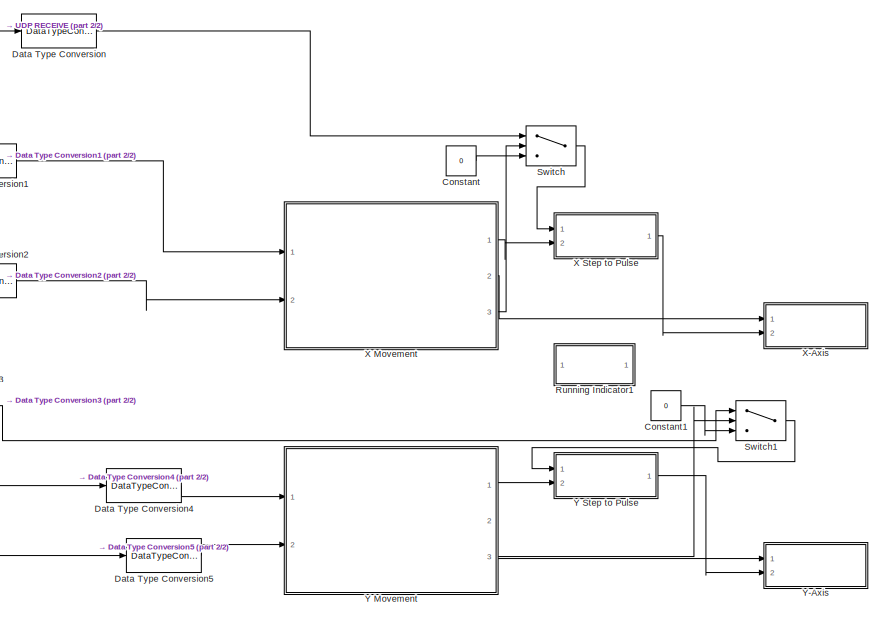
[diagram: root canvas - part 1/2, right side, full height]
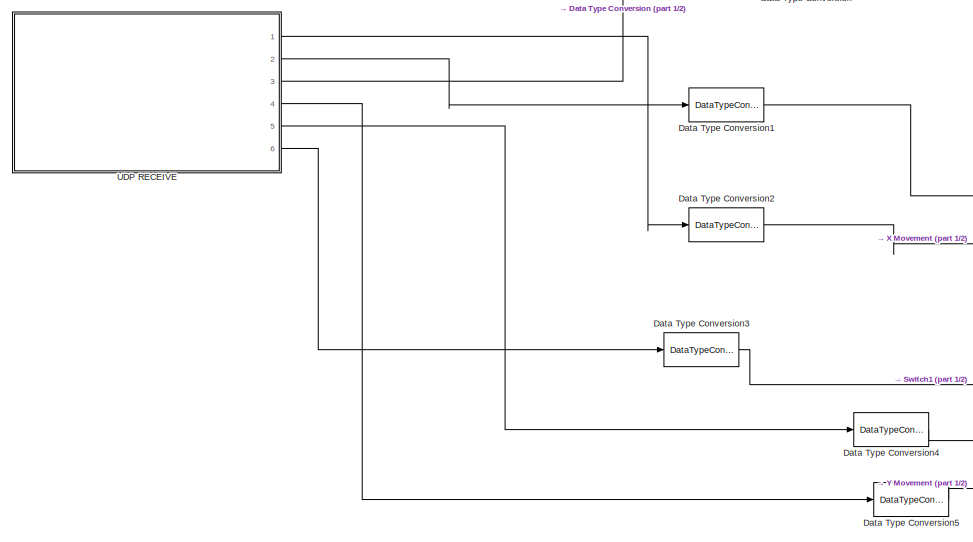
[diagram: root canvas - part 2/2, left side, full height]
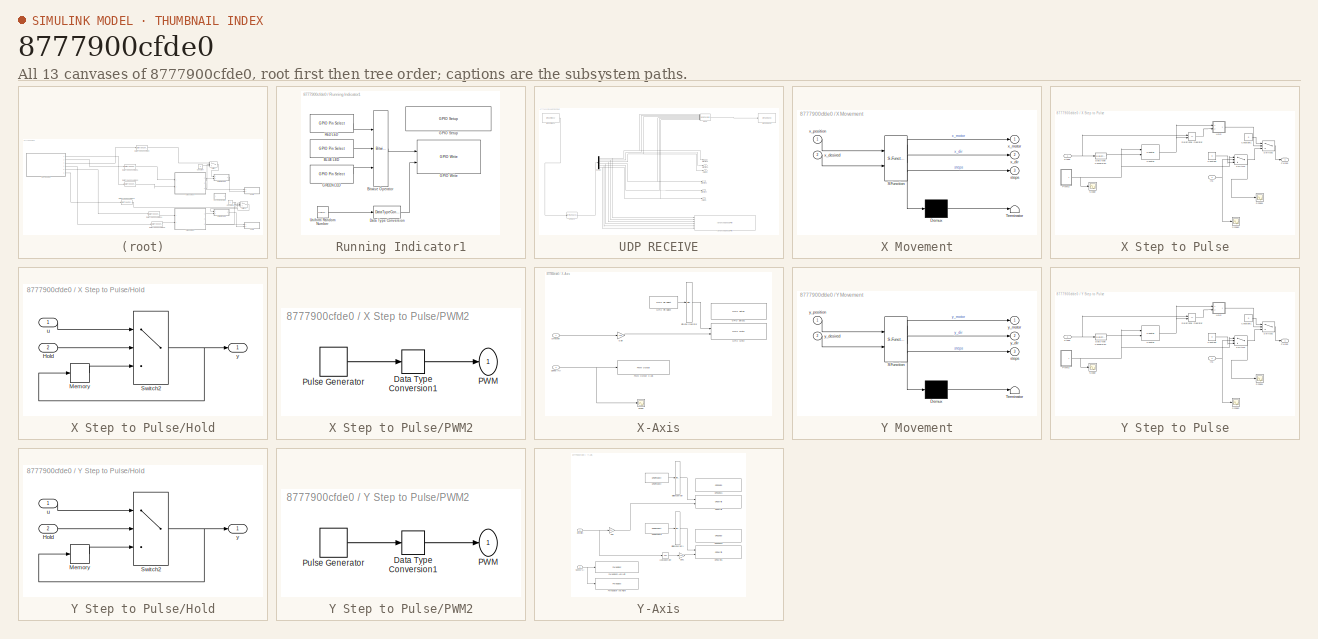
[diagram: thumbnail index - all 13 canvases of the model, root first then tree order]
MODEL slx_8777900cfde0
KIND model
CONFIG AbsTol = auto
CONFIG EnableMultiTasking = off
CONFIG FixedStep = 0.2
CONFIG MaxStep = auto
CONFIG MinStep = auto
CONFIG RelTol = 1e-3
CONFIG SampleTimeConstraint = Unconstrained
CONFIG Solver = FixedStepDiscrete
CONFIG SolverName = FixedStepDiscrete
CONFIG StartTime = 0.0
CONFIG StopTime = 10.0
BLOCK [Constant] Constant
  Value = 0
BLOCK [Constant] Constant1
  Value = 0
BLOCK [DataTypeConversion] Data Type Conversion
  RndMeth = Floor
  SaturateOnIntegerOverflow = off
BLOCK [DataTypeConversion] Data Type Conversion1
  RndMeth = Floor
  SaturateOnIntegerOverflow = off
BLOCK [DataTypeConversion] Data Type Conversion2
  RndMeth = Floor
  SaturateOnIntegerOverflow = off
BLOCK [DataTypeConversion] Data Type Conversion3
  RndMeth = Floor
  SaturateOnIntegerOverflow = off
BLOCK [DataTypeConversion] Data Type Conversion4
  RndMeth = Floor
  SaturateOnIntegerOverflow = off
BLOCK [DataTypeConversion] Data Type Conversion5
  RndMeth = Floor
  SaturateOnIntegerOverflow = off
BLOCK [SubSystem] Running Indicator1
  Ports = []
  RequestExecContextInheritance = off
  Variant = off
BLOCK [Reference] Running Indicator1/BLUE LED  REF=stellaris_lp_lib/GPIO/GPIO Pin Select
  Ports = [0, 1]
  SourceBlock = stellaris_lp_lib/GPIO/GPIO Pin Select
  SourceProductName = Run on Stellaris LaunchPad
  SourceType = GPIO pin selector
BLOCK [Reference] Running Indicator1/Bitwise Operator  REF=simulink/Logic and Bit
Operations/Bitwise
Operator
  Ports = [3, 1]
  SourceBlock = simulink/Logic and Bit\nOperations/Bitwise\nOperator
  SourceProductBaseCode = SL
  SourceProductName = Simulink
  SourceType = Bitwise Operator
BLOCK [DataTypeConversion] Running Indicator1/Data Type Conversion
  RndMeth = Floor
  SaturateOnIntegerOverflow = off
BLOCK [Reference] Running Indicator1/GPIO Setup  REF=stellaris_lp_lib/GPIO/GPIO Setup
  Ports = []
  SourceBlock = stellaris_lp_lib/GPIO/GPIO Setup
  SourceProductName = Run on Stellaris LaunchPad
  SourceType = GPIO Setup
BLOCK [Reference] Running Indicator1/GPIO Write  REF=stellaris_lp_lib/GPIO/GPIO Write
  Ports = [2]
  SourceBlock = stellaris_lp_lib/GPIO/GPIO Write
  SourceProductName = Run on Stellaris LaunchPad
  SourceType = GPIO Write
BLOCK [Reference] Running Indicator1/GREEN LED  REF=stellaris_lp_lib/GPIO/GPIO Pin Select
  Ports = [0, 1]
  SourceBlock = stellaris_lp_lib/GPIO/GPIO Pin Select
  SourceProductName = Run on Stellaris LaunchPad
  SourceType = GPIO pin selector
BLOCK [Reference] Running Indicator1/RED LED  REF=stellaris_lp_lib/GPIO/GPIO Pin Select
  Ports = [0, 1]
  SourceBlock = stellaris_lp_lib/GPIO/GPIO Pin Select
  SourceProductName = Run on Stellaris LaunchPad
  SourceType = GPIO pin selector
BLOCK [UniformRandomNumber] Running Indicator1/Uniform Random Number
  Maximum = 2
  Minimum = 0
  SampleTime = 0.2
BLOCK [Switch] Switch
  Criteria = u2 ~= 0
  InputSameDT = off
  SaturateOnIntegerOverflow = off
BLOCK [Switch] Switch1
  Criteria = u2 ~= 0
  InputSameDT = off
  SaturateOnIntegerOverflow = off
BLOCK [SubSystem] UDP RECEIVE
  Ports = [0, 6]
  RequestExecContextInheritance = off
  Variant = off
BLOCK [Reference] UDP RECEIVE/Advanced Debug Print  REF=stellaris_lp_lib/Debug/Advanced Debug Print
  Ports = [6]
  SourceBlock = stellaris_lp_lib/Debug/Advanced Debug Print
  SourceProductName = Run on Stellaris LaunchPad
  SourceType = Advanced Debug Print
BLOCK [Demux] UDP RECEIVE/Demux
  DisplayOption = bar
  Outputs = 6
  Ports = [1, 6]
BLOCK [Outport] UDP RECEIVE/Direction-1 
  IconDisplay = Port number
BLOCK [Outport] UDP RECEIVE/Direction-2 
  IconDisplay = Port number
  Port = 2
BLOCK [Outport] UDP RECEIVE/Direction-3 
  IconDisplay = Port number
  Port = 4
BLOCK [Outport] UDP RECEIVE/Direction-4 
  IconDisplay = Port number
  Port = 5
BLOCK [Reference] UDP RECEIVE/MPComRecv  REF=stellaris_lp_lib/Communication/MPComRecv
  Ports = [0, 1]
  SourceBlock = stellaris_lp_lib/Communication/MPComRecv
  SourceProductName = Run on Stellaris LaunchPad
  SourceType = Multi-port Serial Receive
BLOCK [Reference] UDP RECEIVE/MPComSend  REF=stellaris_lp_lib/Communication/MPComSend
  Ports = [1, 1]
  SourceBlock = stellaris_lp_lib/Communication/MPComSend
  SourceProductName = Run on Stellaris LaunchPad
  SourceType = Multi-port Serial Send
BLOCK [Reference] UDP RECEIVE/Pack  REF=xpcutilitieslib/Byte Packing 
  Ports = [6, 1]
  SourceBlock = xpcutilitieslib/Byte Packing
  SourceProductBaseCode = XP
  SourceProductName = Simulink Real-Time
  SourceType = xpcbytepacking
BLOCK [Reference] UDP RECEIVE/Unpack  REF=xpcutilitieslib/Byte Unpacking 
  Ports = [1, 1]
  SourceBlock = xpcutilitieslib/Byte Unpacking
  SourceProductBaseCode = XP
  SourceProductName = Simulink Real-Time
  SourceType = xpcbytepacking
BLOCK [Outport] UDP RECEIVE/X-Steps
  IconDisplay = Port number
  Port = 3
BLOCK [Outport] UDP RECEIVE/Y-Steps
  IconDisplay = Port number
  Port = 6
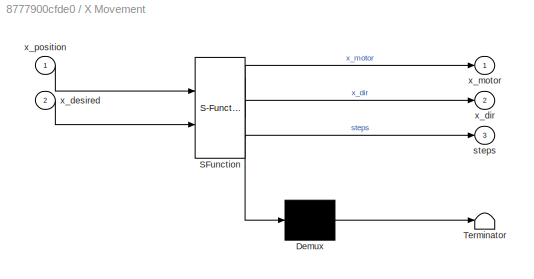
BLOCK [SubSystem] X Movement
  ErrorFcn = Stateflow.Translate.translate
  PermitHierarchicalResolution = ExplicitOnly
  Ports = [2, 3]
  RequestExecContextInheritance = off
  SFBlockType = Chart
  TreatAsAtomicUnit = on
  Variant = off
BLOCK [Demux] X Movement/ Demux 
  Outputs = 1
  Ports = [1, 1]
BLOCK [S-Function] X Movement/ SFunction 
  EnableBusSupport = on
  FunctionName = sf_sfun
  PortCounts = [2 4]
  Ports = [2, 4]
  SFcnIsStateOwnerBlock = off
  SFunctionDeploymentMode = off
  Tag = Stateflow S-Function FullDuplex_UDP 2
BLOCK [Terminator] X Movement/ Terminator 
BLOCK [Outport] X Movement/steps
  IconDisplay = Port number
  Port = 3
BLOCK [Inport] X Movement/x_desired
  IconDisplay = Port number
  Port = 2
BLOCK [Outport] X Movement/x_dir
  IconDisplay = Port number
  Port = 2
BLOCK [Outport] X Movement/x_motor
  IconDisplay = Port number
BLOCK [Inport] X Movement/x_position
  IconDisplay = Port number
BLOCK [SubSystem] X Step to Pulse
  Ports = [2, 1]
  RequestExecContextInheritance = off
  TreatAsAtomicUnit = on
  Variant = off
BLOCK [Constant] X Step to Pulse/Constant
  OutDataTypeStr = single
  Value = 0
BLOCK [Constant] X Step to Pulse/Constant1
  OutDataTypeStr = single
  Value = 0
BLOCK [Reference] X Step to Pulse/Counter  REF=dspswit3/Counter
  Ports = [2, 1]
  SourceBlock = dspswit3/Counter
  SourceProductBaseCode = DS
  SourceProductName = DSP System Toolbox
  SourceType = Counter
BLOCK [DataTypeConversion] X Step to Pulse/Data Type Conversion
  OutDataTypeStr = uint8
  RndMeth = Floor
  SaturateOnIntegerOverflow = off
BLOCK [SubSystem] X Step to Pulse/Hold
  Ports = [2, 1]
  RequestExecContextInheritance = off
  TreatAsAtomicUnit = on
  Variant = off
BLOCK [Inport] X Step to Pulse/Hold/Hold
  IconDisplay = Port number
  OutDataTypeStr = boolean
  Port = 2
BLOCK [Memory] X Step to Pulse/Hold/Memory
BLOCK [Switch] X Step to Pulse/Hold/Switch2
  Criteria = u2 > Threshold
  InputSameDT = off
  OutDataTypeStr = single
  SaturateOnIntegerOverflow = off
BLOCK [Inport] X Step to Pulse/Hold/u
  IconDisplay = Port number
  OutDataTypeStr = single
BLOCK [Outport] X Step to Pulse/Hold/y
  IconDisplay = Port number
  OutDataTypeStr = single
BLOCK [Inport] X Step to Pulse/In1
  IconDisplay = Port number
  Port = 2
BLOCK [SubSystem] X Step to Pulse/PWM2
  Ports = [0, 1]
  RequestExecContextInheritance = off
  Variant = off
BLOCK [DataTypeConversion] X Step to Pulse/PWM2/Data Type Conversion1
  OutDataTypeStr = single
  RndMeth = Floor
  SaturateOnIntegerOverflow = off
BLOCK [Outport] X Step to Pulse/PWM2/PWM
  IconDisplay = Port number
BLOCK [DiscretePulseGenerator] X Step to Pulse/PWM2/Pulse Generator
  Amplitude = 50
  Period = 0.01
  Ports = [0, 1]
  PulseType = Time based
  PulseWidth = 98
BLOCK [Outport] X Step to Pulse/Pulses
  IconDisplay = Port number
BLOCK [RelationalOperator] X Step to Pulse/Relational Operator
  InputSameDT = off
  Operator = ==
  OutDataTypeStr = boolean
  Ports = [2, 1]
  RndMeth = Simplest
BLOCK [Scope] X Step to Pulse/Scope
  NumInputPorts = 1
  Ports = [1]
  ScopeSpecificationString = Simulink.scopes.TimeScopeBlockCfg('CurrentConfiguration', extmgr.ConfigurationSet(extmgr.Configuration('Core','General UI',true),extmgr.Configuration('Core','Source UI',true),extmgr.Configuration('Sources','WiredSimulink',true),extmgr.Configuration('Visuals','Time Domain',true,'SerializedDisplays',{struct('MinYLimReal','-6.25','MaxYLimReal','56.25','YLabelReal','','MinYLimMag','0.00000','MaxYLimMa...<+1342ch>
BLOCK [Scope] X Step to Pulse/Scope1
  NumInputPorts = 1
  Ports = [1]
  ScopeSpecificationString = Simulink.scopes.TimeScopeBlockCfg('CurrentConfiguration', extmgr.ConfigurationSet(extmgr.Configuration('Core','General UI',true),extmgr.Configuration('Core','Source UI',true),extmgr.Configuration('Sources','WiredSimulink',true,'DataLoggingVariableName','ScopeData1'),extmgr.Configuration('Visuals','Time Domain',true,'SerializedDisplays',{struct('MinYLimReal','-6.25','MaxYLimReal','56.25','YLabelRea...<+1381ch>
BLOCK [Scope] X Step to Pulse/Scope2
  NumInputPorts = 1
  Ports = [1]
  ScopeSpecificationString = Simulink.scopes.TimeScopeBlockCfg('CurrentConfiguration', extmgr.ConfigurationSet(extmgr.Configuration('Core','General UI',true),extmgr.Configuration('Core','Source UI',true),extmgr.Configuration('Sources','WiredSimulink',true,'DataLoggingVariableName','ScopeData2'),extmgr.Configuration('Visuals','Time Domain',true,'SerializedDisplays',{struct('MinYLimReal','-0.125','MaxYLimReal','1.125','YLabelRe...<+1379ch>
BLOCK [Inport] X Step to Pulse/Steps
  IconDisplay = Port number
BLOCK [Switch] X Step to Pulse/Switch1
  Criteria = u2 ~= 0
  InputSameDT = off
  SaturateOnIntegerOverflow = off
BLOCK [Switch] X Step to Pulse/Switch2
  Criteria = u2 > Threshold
  InputSameDT = off
  SaturateOnIntegerOverflow = off
BLOCK [SubSystem] X-Axis
  Ports = [2]
  RequestExecContextInheritance = off
  Variant = off
BLOCK [Reference] X-Axis/Bitwise Operator  REF=simulink/Logic and Bit
Operations/Bitwise
Operator
  Ports = [1, 1]
  SourceBlock = simulink/Logic and Bit\nOperations/Bitwise\nOperator
  SourceProductBaseCode = SL
  SourceProductName = Simulink
  SourceType = Bitwise Operator
BLOCK [Inport] X-Axis/Direction
  IconDisplay = Port number
  OutDataTypeStr = uint8
BLOCK [Reference] X-Axis/GPIO Pin Select  REF=stellaris_lp_lib/GPIO/GPIO Pin Select
  Ports = [0, 1]
  SourceBlock = stellaris_lp_lib/GPIO/GPIO Pin Select
  SourceProductName = Run on Stellaris LaunchPad
  SourceType = GPIO pin selector
BLOCK [Reference] X-Axis/GPIO Setup1  REF=stellaris_lp_lib/GPIO/GPIO Setup
  Ports = []
  SourceBlock = stellaris_lp_lib/GPIO/GPIO Setup
  SourceProductName = Run on Stellaris LaunchPad
  SourceType = GPIO Setup
BLOCK [Reference] X-Axis/GPIO Write  REF=stellaris_lp_lib/GPIO/GPIO Write
  Ports = [2]
  SourceBlock = stellaris_lp_lib/GPIO/GPIO Write
  SourceProductName = Run on Stellaris LaunchPad
  SourceType = GPIO Write
BLOCK [Gain] X-Axis/Gain
  Gain = 128
  OutDataTypeStr = uint8
  ParamDataTypeStr = uint8
  SaturateOnIntegerOverflow = off
BLOCK [Reference] X-Axis/PWM Output X-Axis  REF=stellaris_lp_lib/PWM/PWM Output
  Ports = [1]
  SourceBlock = stellaris_lp_lib/PWM/PWM Output
  SourceProductName = Run on Stellaris LaunchPad
  SourceType = PWM Output
BLOCK [Scope] X-Axis/Scope
  NumInputPorts = 1
  Ports = [1]
  ScopeSpecificationString = Simulink.scopes.TimeScopeBlockCfg('CurrentConfiguration', extmgr.ConfigurationSet(extmgr.Configuration('Core','General UI',true),extmgr.Configuration('Core','Source UI',true),extmgr.Configuration('Sources','WiredSimulink',true,'DataLoggingVariableName','ScopeData1'),extmgr.Configuration('Visuals','Time Domain',true,'SerializedDisplays',{struct('MinYLimReal','-6.25','MaxYLimReal','56.25','YLabelRea...<+1354ch>
BLOCK [Inport] X-Axis/Speed (%)
  IconDisplay = Port number
  OutDataTypeStr = single
  Port = 2
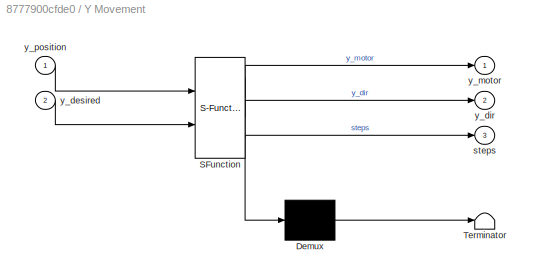
BLOCK [SubSystem] Y Movement
  ErrorFcn = Stateflow.Translate.translate
  PermitHierarchicalResolution = ExplicitOnly
  Ports = [2, 3]
  RequestExecContextInheritance = off
  SFBlockType = Chart
  TreatAsAtomicUnit = on
  Variant = off
BLOCK [Demux] Y Movement/ Demux 
  Outputs = 1
  Ports = [1, 1]
BLOCK [S-Function] Y Movement/ SFunction 
  EnableBusSupport = on
  FunctionName = sf_sfun
  PortCounts = [2 4]
  Ports = [2, 4]
  SFcnIsStateOwnerBlock = off
  SFunctionDeploymentMode = off
  Tag = Stateflow S-Function FullDuplex_UDP 3
BLOCK [Terminator] Y Movement/ Terminator 
BLOCK [Outport] Y Movement/steps
  IconDisplay = Port number
  Port = 3
BLOCK [Inport] Y Movement/y_desired
  IconDisplay = Port number
  Port = 2
BLOCK [Outport] Y Movement/y_dir
  IconDisplay = Port number
  Port = 2
BLOCK [Outport] Y Movement/y_motor
  IconDisplay = Port number
BLOCK [Inport] Y Movement/y_position
  IconDisplay = Port number
BLOCK [SubSystem] Y Step to Pulse
  Ports = [2, 1]
  RequestExecContextInheritance = off
  TreatAsAtomicUnit = on
  Variant = off
BLOCK [Constant] Y Step to Pulse/Constant
  OutDataTypeStr = single
  Value = 0
BLOCK [Constant] Y Step to Pulse/Constant1
  OutDataTypeStr = single
  Value = 0
BLOCK [Reference] Y Step to Pulse/Counter  REF=dspswit3/Counter
  Ports = [2, 1]
  SourceBlock = dspswit3/Counter
  SourceProductBaseCode = DS
  SourceProductName = DSP System Toolbox
  SourceType = Counter
BLOCK [DataTypeConversion] Y Step to Pulse/Data Type Conversion
  OutDataTypeStr = uint8
  RndMeth = Floor
  SaturateOnIntegerOverflow = off
BLOCK [SubSystem] Y Step to Pulse/Hold
  Ports = [2, 1]
  RequestExecContextInheritance = off
  TreatAsAtomicUnit = on
  Variant = off
BLOCK [Inport] Y Step to Pulse/Hold/Hold
  IconDisplay = Port number
  OutDataTypeStr = boolean
  Port = 2
BLOCK [Memory] Y Step to Pulse/Hold/Memory
BLOCK [Switch] Y Step to Pulse/Hold/Switch2
  Criteria = u2 > Threshold
  InputSameDT = off
  OutDataTypeStr = single
  SaturateOnIntegerOverflow = off
BLOCK [Inport] Y Step to Pulse/Hold/u
  IconDisplay = Port number
  OutDataTypeStr = single
BLOCK [Outport] Y Step to Pulse/Hold/y
  IconDisplay = Port number
  OutDataTypeStr = single
BLOCK [Inport] Y Step to Pulse/In1
  IconDisplay = Port number
  Port = 2
BLOCK [SubSystem] Y Step to Pulse/PWM2
  Ports = [0, 1]
  RequestExecContextInheritance = off
  Variant = off
BLOCK [DataTypeConversion] Y Step to Pulse/PWM2/Data Type Conversion1
  OutDataTypeStr = single
  RndMeth = Floor
  SaturateOnIntegerOverflow = off
BLOCK [Outport] Y Step to Pulse/PWM2/PWM
  IconDisplay = Port number
BLOCK [DiscretePulseGenerator] Y Step to Pulse/PWM2/Pulse Generator
  Amplitude = 50
  Period = 0.01
  Ports = [0, 1]
  PulseType = Time based
  PulseWidth = 98
BLOCK [Outport] Y Step to Pulse/Pulses
  IconDisplay = Port number
BLOCK [RelationalOperator] Y Step to Pulse/Relational Operator
  InputSameDT = off
  Operator = ==
  OutDataTypeStr = boolean
  Ports = [2, 1]
  RndMeth = Simplest
BLOCK [Scope] Y Step to Pulse/Scope
  NumInputPorts = 1
  Ports = [1]
  ScopeSpecificationString = Simulink.scopes.TimeScopeBlockCfg('CurrentConfiguration', extmgr.ConfigurationSet(extmgr.Configuration('Core','General UI',true),extmgr.Configuration('Core','Source UI',true),extmgr.Configuration('Sources','WiredSimulink',true),extmgr.Configuration('Visuals','Time Domain',true,'SerializedDisplays',{struct('MinYLimReal','-6.25','MaxYLimReal','56.25','YLabelReal','','MinYLimMag','0.00000','MaxYLimMa...<+1342ch>
BLOCK [Scope] Y Step to Pulse/Scope1
  NumInputPorts = 1
  Ports = [1]
  ScopeSpecificationString = Simulink.scopes.TimeScopeBlockCfg('CurrentConfiguration', extmgr.ConfigurationSet(extmgr.Configuration('Core','General UI',true),extmgr.Configuration('Core','Source UI',true),extmgr.Configuration('Sources','WiredSimulink',true,'DataLoggingVariableName','ScopeData1'),extmgr.Configuration('Visuals','Time Domain',true,'SerializedDisplays',{struct('MinYLimReal','-6.25','MaxYLimReal','56.25','YLabelRea...<+1381ch>
BLOCK [Scope] Y Step to Pulse/Scope2
  NumInputPorts = 1
  Ports = [1]
  ScopeSpecificationString = Simulink.scopes.TimeScopeBlockCfg('CurrentConfiguration', extmgr.ConfigurationSet(extmgr.Configuration('Core','General UI',true),extmgr.Configuration('Core','Source UI',true),extmgr.Configuration('Sources','WiredSimulink',true,'DataLoggingVariableName','ScopeData2'),extmgr.Configuration('Visuals','Time Domain',true,'SerializedDisplays',{struct('MinYLimReal','-0.125','MaxYLimReal','1.125','YLabelRe...<+1379ch>
BLOCK [Inport] Y Step to Pulse/Steps
  IconDisplay = Port number
BLOCK [Switch] Y Step to Pulse/Switch1
  Criteria = u2 ~= 0
  InputSameDT = off
  SaturateOnIntegerOverflow = off
BLOCK [Switch] Y Step to Pulse/Switch2
  Criteria = u2 > Threshold
  InputSameDT = off
  SaturateOnIntegerOverflow = off
BLOCK [SubSystem] Y-Axis
  Ports = [2]
  RequestExecContextInheritance = off
  Variant = off
BLOCK [Reference] Y-Axis/Bitwise Operator  REF=simulink/Logic and Bit
Operations/Bitwise
Operator
  Ports = [1, 1]
  SourceBlock = simulink/Logic and Bit\nOperations/Bitwise\nOperator
  SourceProductBaseCode = SL
  SourceProductName = Simulink
  SourceType = Bitwise Operator
BLOCK [Reference] Y-Axis/Bitwise Operator1  REF=simulink/Logic and Bit
Operations/Bitwise
Operator
  Ports = [1, 1]
  SourceBlock = simulink/Logic and Bit\nOperations/Bitwise\nOperator
  SourceProductBaseCode = SL
  SourceProductName = Simulink
  SourceType = Bitwise Operator
BLOCK [Inport] Y-Axis/Direction
  IconDisplay = Port number
  OutDataTypeStr = uint8
BLOCK [Reference] Y-Axis/GPIO Pin Select  REF=stellaris_lp_lib/GPIO/GPIO Pin Select
  Ports = [0, 1]
  SourceBlock = stellaris_lp_lib/GPIO/GPIO Pin Select
  SourceProductName = Run on Stellaris LaunchPad
  SourceType = GPIO pin selector
BLOCK [Reference] Y-Axis/GPIO Pin Select1  REF=stellaris_lp_lib/GPIO/GPIO Pin Select
  Ports = [0, 1]
  SourceBlock = stellaris_lp_lib/GPIO/GPIO Pin Select
  SourceProductName = Run on Stellaris LaunchPad
  SourceType = GPIO pin selector
BLOCK [Reference] Y-Axis/GPIO Setup1  REF=stellaris_lp_lib/GPIO/GPIO Setup
  Ports = []
  SourceBlock = stellaris_lp_lib/GPIO/GPIO Setup
  SourceProductName = Run on Stellaris LaunchPad
  SourceType = GPIO Setup
BLOCK [Reference] Y-Axis/GPIO Setup2  REF=stellaris_lp_lib/GPIO/GPIO Setup
  Ports = []
  SourceBlock = stellaris_lp_lib/GPIO/GPIO Setup
  SourceProductName = Run on Stellaris LaunchPad
  SourceType = GPIO Setup
BLOCK [Reference] Y-Axis/GPIO Write  REF=stellaris_lp_lib/GPIO/GPIO Write
  Ports = [2]
  SourceBlock = stellaris_lp_lib/GPIO/GPIO Write
  SourceProductName = Run on Stellaris LaunchPad
  SourceType = GPIO Write
BLOCK [Reference] Y-Axis/GPIO Write1  REF=stellaris_lp_lib/GPIO/GPIO Write
  Ports = [2]
  SourceBlock = stellaris_lp_lib/GPIO/GPIO Write
  SourceProductName = Run on Stellaris LaunchPad
  SourceType = GPIO Write
BLOCK [Gain] Y-Axis/Gain
  Gain = 64
  OutDataTypeStr = uint8
  ParamDataTypeStr = uint8
  SaturateOnIntegerOverflow = off
BLOCK [Gain] Y-Axis/Gain1
  Gain = 128
  OutDataTypeStr = uint8
  ParamDataTypeStr = Inherit: Inherit via internal rule
  SaturateOnIntegerOverflow = off
BLOCK [Logic] Y-Axis/Logical Operator
  AllPortsSameDT = off
  Operator = NOT
  OutDataTypeStr = boolean
  Ports = [1, 1]
BLOCK [Reference] Y-Axis/PWM Output Y-Axis (Left)  REF=stellaris_lp_lib/PWM/PWM Output
  Ports = [1]
  SourceBlock = stellaris_lp_lib/PWM/PWM Output
  SourceProductName = Run on Stellaris LaunchPad
  SourceType = PWM Output
BLOCK [Reference] Y-Axis/PWM Output Y-Axis (Right)  REF=stellaris_lp_lib/PWM/PWM Output
  Ports = [1]
  SourceBlock = stellaris_lp_lib/PWM/PWM Output
  SourceProductName = Run on Stellaris LaunchPad
  SourceType = PWM Output
BLOCK [Inport] Y-Axis/Speed (%)
  IconDisplay = Port number
  OutDataTypeStr = single
  Port = 2
LINE Constant1:1 -> Switch1:3
LINE Constant:1 -> Switch:3
LINE Data Type Conversion1:1 -> X Movement:1
LINE Data Type Conversion2:1 -> X Movement:2
LINE Data Type Conversion3:1 -> Switch1:1
LINE Data Type Conversion4:1 -> Y Movement:1
LINE Data Type Conversion5:1 -> Y Movement:2
LINE Data Type Conversion:1 -> Switch:1
LINE Running Indicator1/BLUE LED:1 -> Running Indicator1/Bitwise Operator:2
LINE Running Indicator1/Bitwise Operator:1 -> Running Indicator1/GPIO Write:1
LINE Running Indicator1/Data Type Conversion:1 -> Running Indicator1/GPIO Write:2
LINE Running Indicator1/GREEN LED:1 -> Running Indicator1/Bitwise Operator:3
LINE Running Indicator1/RED LED:1 -> Running Indicator1/Bitwise Operator:1
LINE Running Indicator1/Uniform Random Number:1 -> Running Indicator1/Data Type Conversion:1
LINE Switch1:1 -> Y Step to Pulse:1
LINE Switch:1 -> X Step to Pulse:1
NET UDP RECEIVE/Demux:1 -> UDP RECEIVE/Advanced Debug Print:1, UDP RECEIVE/Direction-1 :1, UDP RECEIVE/Pack:1
NET UDP RECEIVE/Demux:2 -> UDP RECEIVE/Advanced Debug Print:2, UDP RECEIVE/Direction-2 :1, UDP RECEIVE/Pack:2
NET UDP RECEIVE/Demux:3 -> UDP RECEIVE/Advanced Debug Print:3, UDP RECEIVE/Pack:3, UDP RECEIVE/X-Steps:1
NET UDP RECEIVE/Demux:4 -> UDP RECEIVE/Advanced Debug Print:4, UDP RECEIVE/Direction-3 :1, UDP RECEIVE/Pack:4
NET UDP RECEIVE/Demux:5 -> UDP RECEIVE/Advanced Debug Print:5, UDP RECEIVE/Direction-4 :1, UDP RECEIVE/Pack:5
NET UDP RECEIVE/Demux:6 -> UDP RECEIVE/Advanced Debug Print:6, UDP RECEIVE/Pack:6, UDP RECEIVE/Y-Steps:1
LINE UDP RECEIVE/MPComRecv:1 -> UDP RECEIVE/Unpack:1
LINE UDP RECEIVE/Pack:1 -> UDP RECEIVE/MPComSend:1
LINE UDP RECEIVE/Unpack:1 -> UDP RECEIVE/Demux:1
LINE UDP RECEIVE:1 -> Data Type Conversion2:1
LINE UDP RECEIVE:2 -> Data Type Conversion1:1
LINE UDP RECEIVE:3 -> Data Type Conversion:1
LINE UDP RECEIVE:4 -> Data Type Conversion5:1
LINE UDP RECEIVE:5 -> Data Type Conversion4:1
LINE UDP RECEIVE:6 -> Data Type Conversion3:1
LINE X Movement:1 -> X Step to Pulse:2
LINE X Movement:2 -> X-Axis:1
LINE X Movement:3 -> Switch:2
LINE X Step to Pulse/Constant1:1 -> X Step to Pulse/Switch2:1
LINE X Step to Pulse/Constant:1 -> X Step to Pulse/Switch1:3
NET X Step to Pulse/Counter:1 -> X Step to Pulse/Hold:1, X Step to Pulse/Relational Operator:2
LINE X Step to Pulse/Data Type Conversion:1 -> X Step to Pulse/Counter:2
LINE X Step to Pulse/Hold/Hold:1 -> X Step to Pulse/Hold/Switch2:2
LINE X Step to Pulse/Hold/Memory:1 -> X Step to Pulse/Hold/Switch2:3
NET X Step to Pulse/Hold/Switch2:1 -> X Step to Pulse/Hold/Memory:1, X Step to Pulse/Hold/y:1
LINE X Step to Pulse/Hold/u:1 -> X Step to Pulse/Hold/Switch2:1
LINE X Step to Pulse/Hold:1 -> X Step to Pulse/Switch2:2
NET X Step to Pulse/In1:1 -> X Step to Pulse/Scope2:1, X Step to Pulse/Switch1:2
LINE X Step to Pulse/PWM2/Data Type Conversion1:1 -> X Step to Pulse/PWM2/PWM:1
LINE X Step to Pulse/PWM2/Pulse Generator:1 -> X Step to Pulse/PWM2/Data Type Conversion1:1
NET X Step to Pulse/PWM2:1 -> X Step to Pulse/Counter:1, X Step to Pulse/Scope:1, X Step to Pulse/Switch1:1
LINE X Step to Pulse/Relational Operator:1 -> X Step to Pulse/Hold:2
NET X Step to Pulse/Steps:1 -> X Step to Pulse/Data Type Conversion:1, X Step to Pulse/Relational Operator:1
NET X Step to Pulse/Switch1:1 -> X Step to Pulse/Scope1:1, X Step to Pulse/Switch2:3
LINE X Step to Pulse/Switch2:1 -> X Step to Pulse/Pulses:1
LINE X Step to Pulse:1 -> X-Axis:2
LINE X-Axis/Bitwise Operator:1 -> X-Axis/GPIO Write:1
LINE X-Axis/Direction:1 -> X-Axis/Gain:1
LINE X-Axis/GPIO Pin Select:1 -> X-Axis/Bitwise Operator:1
LINE X-Axis/Gain:1 -> X-Axis/GPIO Write:2
NET X-Axis/Speed (%):1 -> X-Axis/PWM Output X-Axis:1, X-Axis/Scope:1
LINE Y Movement:1 -> Y Step to Pulse:2
LINE Y Movement:2 -> Y-Axis:1
LINE Y Movement:3 -> Switch1:2
LINE Y Step to Pulse/Constant1:1 -> Y Step to Pulse/Switch2:1
LINE Y Step to Pulse/Constant:1 -> Y Step to Pulse/Switch1:3
NET Y Step to Pulse/Counter:1 -> Y Step to Pulse/Hold:1, Y Step to Pulse/Relational Operator:2
LINE Y Step to Pulse/Data Type Conversion:1 -> Y Step to Pulse/Counter:2
LINE Y Step to Pulse/Hold/Hold:1 -> Y Step to Pulse/Hold/Switch2:2
LINE Y Step to Pulse/Hold/Memory:1 -> Y Step to Pulse/Hold/Switch2:3
NET Y Step to Pulse/Hold/Switch2:1 -> Y Step to Pulse/Hold/Memory:1, Y Step to Pulse/Hold/y:1
LINE Y Step to Pulse/Hold/u:1 -> Y Step to Pulse/Hold/Switch2:1
LINE Y Step to Pulse/Hold:1 -> Y Step to Pulse/Switch2:2
NET Y Step to Pulse/In1:1 -> Y Step to Pulse/Scope2:1, Y Step to Pulse/Switch1:2
LINE Y Step to Pulse/PWM2/Data Type Conversion1:1 -> Y Step to Pulse/PWM2/PWM:1
LINE Y Step to Pulse/PWM2/Pulse Generator:1 -> Y Step to Pulse/PWM2/Data Type Conversion1:1
NET Y Step to Pulse/PWM2:1 -> Y Step to Pulse/Counter:1, Y Step to Pulse/Scope:1, Y Step to Pulse/Switch1:1
LINE Y Step to Pulse/Relational Operator:1 -> Y Step to Pulse/Hold:2
NET Y Step to Pulse/Steps:1 -> Y Step to Pulse/Data Type Conversion:1, Y Step to Pulse/Relational Operator:1
NET Y Step to Pulse/Switch1:1 -> Y Step to Pulse/Scope1:1, Y Step to Pulse/Switch2:3
LINE Y Step to Pulse/Switch2:1 -> Y Step to Pulse/Pulses:1
LINE Y Step to Pulse:1 -> Y-Axis:2
LINE Y-Axis/Bitwise Operator1:1 -> Y-Axis/GPIO Write1:1
LINE Y-Axis/Bitwise Operator:1 -> Y-Axis/GPIO Write:1
NET Y-Axis/Direction:1 -> Y-Axis/Gain:1, Y-Axis/Logical Operator:1
LINE Y-Axis/GPIO Pin Select1:1 -> Y-Axis/Bitwise Operator1:1
LINE Y-Axis/GPIO Pin Select:1 -> Y-Axis/Bitwise Operator:1
LINE Y-Axis/Gain1:1 -> Y-Axis/GPIO Write1:2
LINE Y-Axis/Gain:1 -> Y-Axis/GPIO Write:2
LINE Y-Axis/Logical Operator:1 -> Y-Axis/Gain1:1
NET Y-Axis/Speed (%):1 -> Y-Axis/PWM Output Y-Axis (Left):1, Y-Axis/PWM Output Y-Axis (Right):1
note: NET lines group one-source signal fan-out (src -> all destinations, sorted); 1:1 wires keep LINE
CHART X Movement states=3 transitions=7
  STATE_LABEL 'Motor_Moving_CCW1\nentry:\nsteps = 1;\nx_dir = 0;\nx_motor = 1;\nexit:\nx_motor = 0;\nsteps = 0;'
  STATE_LABEL 'Motor_Still\nentry:\nsteps = 1;\nx_motor = 0;\nexit:\nsteps = 0;'
  STATE_LABEL 'Motor_Moving_CW\nentry:\nsteps = 1;\nx_dir = 1;\nx_motor = 1;\nexit:\nx_motor = 0;\nsteps = 0;\n'
CHART Y Movement states=3 transitions=7
  STATE_LABEL 'Motor_Still\nentry:\nsteps = 1;\ny_motor = 0;'
  STATE_LABEL 'Motor_Moving_CCW1\nentry:\nsteps = 1;\ny_dir = 0;\ny_motor = 1;\nexit:\ny_motor = 0;\nsteps = 0;'
  STATE_LABEL 'Motor_Moving_CW\nentry:\nsteps = 1;\ny_dir = 1;\ny_motor = 1;\nexit:\ny_motor = 0;\nsteps = 0;\n'
